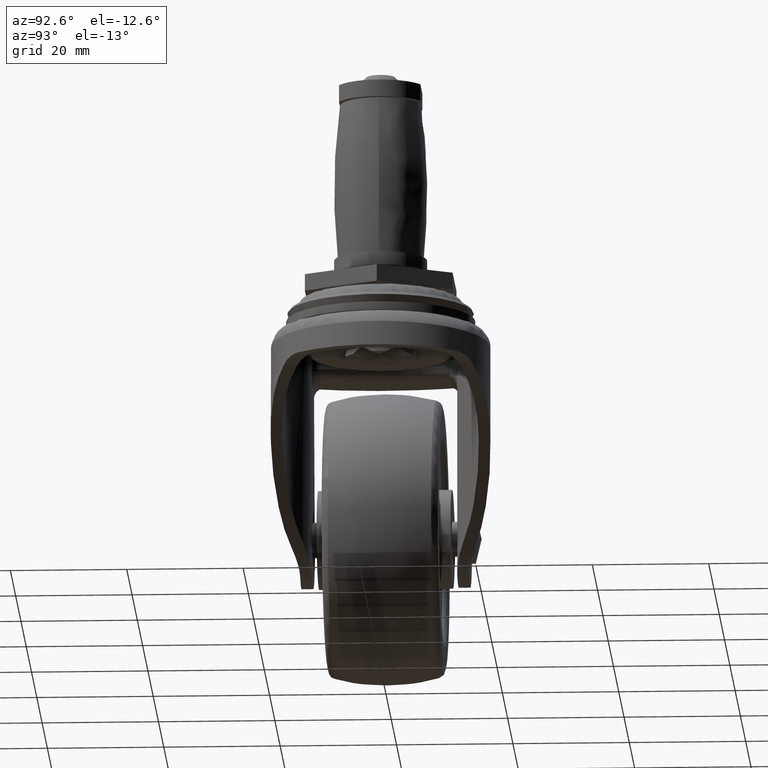
[diagram: clean part render]
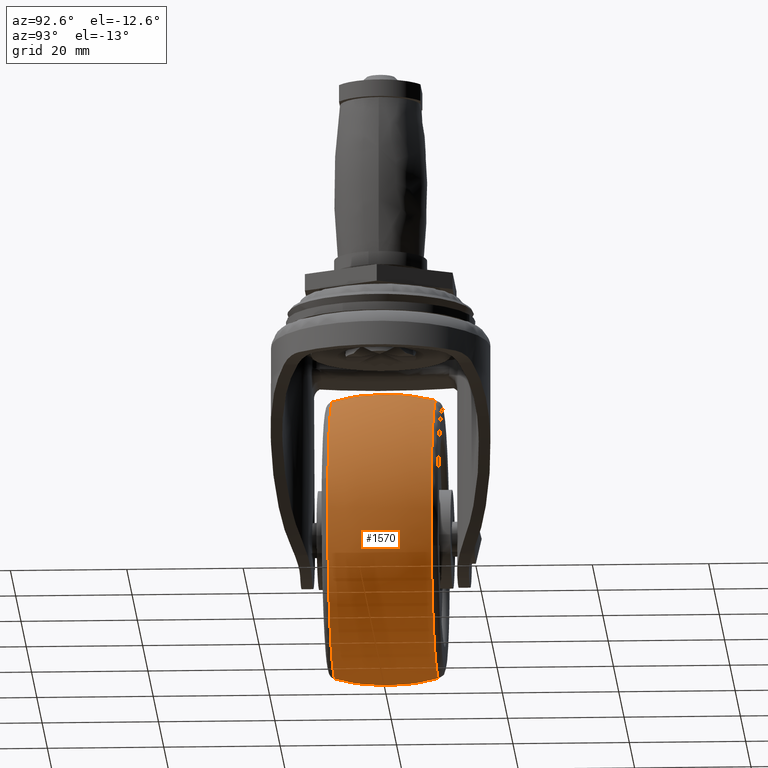
[diagram: same view with one face highlighted and labeled with its STEP entity id]
A machine part, auxiliary view. The second image highlights one B-rep face of the part: STEP entity #1570.
In plain terms, the highlighted face is a freeform B-spline surface patch.
Its self-contained STEP definition (entity closure, byte-faithful):
#848=CARTESIAN_POINT('',(-10.439454704231171,-8.880695348597591,-63.266084000819433));
#849=VERTEX_POINT('',#848);
#863=CARTESIAN_POINT('',(4.105181005570539,-8.880683016474443,-35.068018819371893));
#864=VERTEX_POINT('',#863);
#865=CARTESIAN_POINT('',(-10.439454704231172,-8.880695348597591,-63.266084000819440));
#866=CARTESIAN_POINT('',(4.854616084614149,-8.880692826218334,-57.385926726864390));
#867=CARTESIAN_POINT('',(4.854616602799102,-8.880685626245796,-41.000417968174808));
#868=CARTESIAN_POINT('',(4.854616698100981,-8.880684302064344,-37.986880534437795));
#869=CARTESIAN_POINT('',(4.105181005570539,-8.880683016474443,-35.068018819371879));
#877=(BOUNDED_CURVE()B_SPLINE_CURVE(2,(#865,#866,#867,#868,#869),.UNSPECIFIED.,.F.,.U.)B_SPLINE_CURVE_WITH_KNOTS((3,2,3),(0.060939058467430,0.250000000000000,0.292443215233338),.UNSPECIFIED.)CURVE()GEOMETRIC_REPRESENTATION_ITEM()RATIONAL_B_SPLINE_CURVE((0.892016636363401,0.778501329130495,1.0,0.950274680294062,0.917433380162729))REPRESENTATION_ITEM(''));
#878=EDGE_CURVE('',#849,#864,#877,.T.);
#977=CARTESIAN_POINT('',(-19.0,-8.880674679469260,-17.145799814691660));
#978=VERTEX_POINT('',#977);
#979=CARTESIAN_POINT('',(4.105181005570539,-8.880683016474443,-35.068018819371879));
#980=CARTESIAN_POINT('',(-0.496460138748490,-8.880674840585099,-17.145799661987645));
#981=CARTESIAN_POINT('',(-19.0,-8.880674679469260,-17.145799814691660));
#989=(BOUNDED_CURVE()B_SPLINE_CURVE(2,(#979,#980,#981),.UNSPECIFIED.,.F.,.U.)B_SPLINE_CURVE_WITH_KNOTS((3,3),(0.292443215233338,0.500000000000000),.UNSPECIFIED.)CURVE()GEOMETRIC_REPRESENTATION_ITEM()RATIONAL_B_SPLINE_CURVE((0.917433380162729,0.756832100892486,1.0))REPRESENTATION_ITEM(''));
#990=EDGE_CURVE('',#864,#978,#989,.T.);
#992=CARTESIAN_POINT('',(-42.695071349737589,-8.880689998743961,-38.246087340715889));
#993=VERTEX_POINT('',#992);
#1007=CARTESIAN_POINT('',(-19.0,-8.880696014925480,-64.855036588697899));
#1008=VERTEX_POINT('',#1007);
#1009=CARTESIAN_POINT('',(-42.695071349737589,-8.880689998743961,-38.246087340715889));
#1010=CARTESIAN_POINT('',(-42.854617115841521,-8.880690153907644,-39.618633208410309));
#1011=CARTESIAN_POINT('',(-42.854617070440391,-8.880690328152435,-41.000420827761182));
#1012=CARTESIAN_POINT('',(-42.854616286653851,-8.880693336243196,-64.855036507566936));
#1013=CARTESIAN_POINT('',(-19.0,-8.880696014925480,-64.855036588697899));
#1021=(BOUNDED_CURVE()B_SPLINE_CURVE(2,(#1009,#1010,#1011,#1012,#1013),.UNSPECIFIED.,.F.,.U.)B_SPLINE_CURVE_WITH_KNOTS((3,2,3),(0.730000152255469,0.750000000000000,1.0),.UNSPECIFIED.)CURVE()GEOMETRIC_REPRESENTATION_ITEM()RATIONAL_B_SPLINE_CURVE((0.956886417866550,0.976568720873301,1.0,0.707106781186547,1.0))REPRESENTATION_ITEM(''));
#1022=EDGE_CURVE('',#993,#1008,#1021,.T.);
#1024=CARTESIAN_POINT('',(-19.0,-8.880696014925480,-64.855036588697899));
#1025=CARTESIAN_POINT('',(-14.572261878416146,-8.880696014925480,-64.855036588697899));
#1026=CARTESIAN_POINT('',(-10.439454704231172,-8.880695348597591,-63.266084000819433));
#1034=(BOUNDED_CURVE()B_SPLINE_CURVE(2,(#1024,#1025,#1026),.UNSPECIFIED.,.F.,.U.)B_SPLINE_CURVE_WITH_KNOTS((3,3),(0.0,0.060939058467430),.UNSPECIFIED.)CURVE()GEOMETRIC_REPRESENTATION_ITEM()RATIONAL_B_SPLINE_CURVE((1.0,0.928605452056053,0.892016636363401))REPRESENTATION_ITEM(''));
#1035=EDGE_CURVE('',#1008,#849,#1034,.T.);
#1064=CARTESIAN_POINT('',(4.028808320816079,8.880493062320664,-47.222694978326757));
#1065=VERTEX_POINT('',#1064);
#1066=CARTESIAN_POINT('',(-19.0,8.880484047332796,-17.145801747389740));
#1067=VERTEX_POINT('',#1066);
#1068=CARTESIAN_POINT('',(4.028808320816079,8.880493062320664,-47.222694978326757));
#1069=CARTESIAN_POINT('',(4.854615588697799,8.880491958004653,-44.166356777445131));
#1070=CARTESIAN_POINT('',(4.854615588697799,8.880491031129038,-41.000419168043820));
#1071=CARTESIAN_POINT('',(4.854615588697800,8.880484047332796,-17.145801747389740));
#1072=CARTESIAN_POINT('',(-19.0,8.880484047332796,-17.145801747389740));
#1080=(BOUNDED_CURVE()B_SPLINE_CURVE(2,(#1068,#1069,#1070,#1071,#1072),.UNSPECIFIED.,.F.,.U.)B_SPLINE_CURVE_WITH_KNOTS((3,2,3),(0.205522198813460,0.250000000000000,0.500000000000000),.UNSPECIFIED.)CURVE()GEOMETRIC_REPRESENTATION_ITEM()RATIONAL_B_SPLINE_CURVE((0.914323573906565,0.947891014578918,1.0,0.707106781186547,1.0))REPRESENTATION_ITEM(''));
#1081=EDGE_CURVE('',#1065,#1067,#1080,.T.);
#1184=CARTESIAN_POINT('',(-19.0,8.880498014925280,-64.855036588697899));
#1185=VERTEX_POINT('',#1184);
#1186=CARTESIAN_POINT('',(-19.0,8.880498014925280,-64.855036588697899));
#1187=CARTESIAN_POINT('',(-0.735367634523530,8.880498014925280,-64.855036588697885));
#1188=CARTESIAN_POINT('',(4.028808320816079,8.880493062320664,-47.222694978326757));
#1196=(BOUNDED_CURVE()B_SPLINE_CURVE(2,(#1186,#1187,#1188),.UNSPECIFIED.,.F.,.U.)B_SPLINE_CURVE_WITH_KNOTS((3,3),(0.0,0.205522198813460),.UNSPECIFIED.)CURVE()GEOMETRIC_REPRESENTATION_ITEM()RATIONAL_B_SPLINE_CURVE((1.0,0.759215766607630,0.914323573906565))REPRESENTATION_ITEM(''));
#1197=EDGE_CURVE('',#1185,#1065,#1196,.T.);
#1199=CARTESIAN_POINT('',(-42.695069393824880,8.880499549264304,-38.246087667988547));
#1200=VERTEX_POINT('',#1199);
#1201=CARTESIAN_POINT('',(-42.695069393824873,8.880499549264304,-38.246087667988547));
#1202=CARTESIAN_POINT('',(-42.854615199209967,8.880499509692079,-39.618633480991342));
#1203=CARTESIAN_POINT('',(-42.854615210789220,8.880499465253497,-41.000421043928490));
#1204=CARTESIAN_POINT('',(-42.854615410688758,8.880498698083986,-64.855036609389799));
#1205=CARTESIAN_POINT('',(-19.0,8.880498014925280,-64.855036588697899));
#1213=(BOUNDED_CURVE()B_SPLINE_CURVE(2,(#1201,#1202,#1203,#1204,#1205),.UNSPECIFIED.,.F.,.U.)B_SPLINE_CURVE_WITH_KNOTS((3,2,3),(0.730000152959242,0.750000000000000,1.0),.UNSPECIFIED.)CURVE()GEOMETRIC_REPRESENTATION_ITEM()RATIONAL_B_SPLINE_CURVE((0.956886419251749,0.976568721697823,1.0,0.707106781186547,1.0))REPRESENTATION_ITEM(''));
#1214=EDGE_CURVE('',#1200,#1185,#1213,.T.);
#1478=CARTESIAN_POINT('',(-42.449539180902050,-9.774574389234171,-38.274607386644682));
#1479=CARTESIAN_POINT('',(-43.832791040827090,-4.986535860791466,-38.113815879340628));
#1480=CARTESIAN_POINT('',(-43.832791040827097,-0.000099000000085,-38.113815879340628));
#1481=CARTESIAN_POINT('',(-43.832791040827097,4.986339228121400,-38.113815879340613));
#1482=CARTESIAN_POINT('',(-42.449538437390878,9.774378962850394,-38.274607473071669));
#1483=CARTESIAN_POINT('',(-42.607434160692144,-9.774574389234171,-39.632941095491930));
#1484=CARTESIAN_POINT('',(-43.999999999999993,-4.986535860791465,-39.552275581908553));
#1485=CARTESIAN_POINT('',(-44.0,-0.000099000000085,-39.552275581908560));
#1486=CARTESIAN_POINT('',(-44.0,4.986339228121399,-39.552275581908567));
#1487=CARTESIAN_POINT('',(-42.607433412174601,9.774378962850394,-39.632941138850420));
#1488=CARTESIAN_POINT('',(-42.607434160692151,-9.774574389234173,-41.000421000000109));
#1489=CARTESIAN_POINT('',(-44.000000000000014,-4.986535860791467,-41.000421000000102));
#1490=CARTESIAN_POINT('',(-44.0,-0.000099000000085,-41.000421000000102));
#1491=CARTESIAN_POINT('',(-44.000000000000007,4.986339228121401,-41.000421000000109));
#1492=CARTESIAN_POINT('',(-42.607433412174615,9.774378962850395,-41.000421000000102));
#1493=CARTESIAN_POINT('',(-42.607434160692144,-9.774574389234171,-64.607855160692253));
#1494=CARTESIAN_POINT('',(-44.000000000000014,-4.986535860791466,-66.000421000000117));
#1495=CARTESIAN_POINT('',(-44.000000000000014,-0.000099000000085,-66.000421000000102));
#1496=CARTESIAN_POINT('',(-44.0,4.986339228121400,-66.000421000000102));
#1497=CARTESIAN_POINT('',(-42.607433412174629,9.774378962850397,-64.607854412174731));
#1498=CARTESIAN_POINT('',(-18.999999999999996,-9.774574389234173,-64.607855160692239));
#1499=CARTESIAN_POINT('',(-19.000000000000004,-4.986535860791467,-66.000421000000088));
#1500=CARTESIAN_POINT('',(-19.0,-0.000099000000085,-66.000421000000102));
#1501=CARTESIAN_POINT('',(-18.999999999999996,4.986339228121401,-66.000421000000102));
#1502=CARTESIAN_POINT('',(-18.999999999999996,9.774378962850395,-64.607854412174703));
#1503=CARTESIAN_POINT('',(4.607434160692143,-9.774574389234171,-64.607855160692253));
#1504=CARTESIAN_POINT('',(6.000000000000002,-4.986535860791466,-66.000421000000117));
#1505=CARTESIAN_POINT('',(6.000000000000003,-0.000099000000085,-66.000421000000102));
#1506=CARTESIAN_POINT('',(6.000000000000002,4.986339228121400,-66.000421000000102));
#1507=CARTESIAN_POINT('',(4.607433412174609,9.774378962850397,-64.607854412174717));
#1508=CARTESIAN_POINT('',(4.607434160692143,-9.774574389234173,-41.000421000000109));
#1509=CARTESIAN_POINT('',(6.000000000000001,-4.986535860791467,-41.000421000000102));
#1510=CARTESIAN_POINT('',(6.000000000000002,-0.000099000000085,-41.000421000000102));
#1511=CARTESIAN_POINT('',(6.000000000000001,4.986339228121401,-41.000421000000109));
#1512=CARTESIAN_POINT('',(4.607433412174609,9.774378962850395,-41.000421000000102));
#1513=CARTESIAN_POINT('',(4.607434160692143,-9.774574389234171,-17.392986839307952));
#1514=CARTESIAN_POINT('',(6.000000000000002,-4.986535860791466,-16.000421000000099));
#1515=CARTESIAN_POINT('',(6.000000000000003,-0.000099000000085,-16.000421000000099));
#1516=CARTESIAN_POINT('',(6.000000000000002,4.986339228121400,-16.000421000000109));
#1517=CARTESIAN_POINT('',(4.607433412174609,9.774378962850397,-17.392987587825498));
#1518=CARTESIAN_POINT('',(-18.999999999999996,-9.774574389234173,-17.392986839307959));
#1519=CARTESIAN_POINT('',(-19.000000000000004,-4.986535860791467,-16.000421000000095));
#1520=CARTESIAN_POINT('',(-19.0,-0.000099000000085,-16.000421000000099));
#1521=CARTESIAN_POINT('',(-18.999999999999996,4.986339228121401,-16.000421000000099));
#1522=CARTESIAN_POINT('',(-18.999999999999996,9.774378962850395,-17.392987587825488));
#1530=(BOUNDED_SURFACE()B_SPLINE_SURFACE(2,2,((#1478,#1483,#1488,#1493,#1498,#1503,#1508,#1513,#1518),(#1479,#1484,#1489,#1494,#1499,#1504,#1509,#1514,#1519),(#1480,#1485,#1490,#1495,#1500,#1505,#1510,#1515,#1520),(#1481,#1486,#1491,#1496,#1501,#1506,#1511,#1516,#1521),(#1482,#1487,#1492,#1497,#1502,#1507,#1512,#1517,#1522)),.UNSPECIFIED.,.F.,.F.,.U.)B_SPLINE_SURFACE_WITH_KNOTS((3,2,3),(3,2,2,2,3),(0.0,10.236360747090449,20.472724174438351),(0.0,3.313707807691297,44.735064045000797,86.156420282310307,127.577776519619800),.UNSPECIFIED.)GEOMETRIC_REPRESENTATION_ITEM()RATIONAL_B_SPLINE_SURFACE(((0.890190349488654,0.908500888985242,0.930299149424518,0.657820837090154,0.930299149424518,0.657820837090154,0.930299149424518,0.657820837090154,0.930299149424518),(0.913709496305893,0.932503806792552,0.954877985054265,0.675200698437618,0.954877985054265,0.675200698437618,0.954877985054265,0.675200698437618,0.954877985054265),(0.956886126402807,0.976568547383107,1.0,0.707106781186548,1.0,0.707106781186548,1.0,0.707106781186548,1.0),(0.913709485000657,0.932503795254774,0.954877973239654,0.675200690083426,0.954877973239654,0.675200690083426,0.954877973239654,0.675200690083426,0.954877973239654),(0.890190337172292,0.908500876415542,0.930299136553225,0.657820827988775,0.930299136553225,0.657820827988775,0.930299136553225,0.657820827988775,0.930299136553225)))REPRESENTATION_ITEM('')SURFACE());
#1531=ORIENTED_EDGE('',*,*,#1022,.F.);
#1532=CARTESIAN_POINT('',(-42.695071349737589,-8.880689998743961,-38.246087340715889));
#1533=CARTESIAN_POINT('',(-43.832793451602505,-4.514257930009319,-38.113836618835506));
#1534=CARTESIAN_POINT('',(-43.832793454515084,-0.000099000000043,-38.113836643890963));
#1535=CARTESIAN_POINT('',(-43.832793457427663,4.514063897921121,-38.113836668946433));
#1536=CARTESIAN_POINT('',(-42.695069393824888,8.880499549264304,-38.246087667988547));
#1544=(BOUNDED_CURVE()B_SPLINE_CURVE(2,(#1532,#1533,#1534,#1535,#1536),.UNSPECIFIED.,.F.,.U.)B_SPLINE_CURVE_WITH_KNOTS((3,2,3),(0.396517791678113,0.500000000000000,0.603482295550449),.UNSPECIFIED.)CURVE()GEOMETRIC_REPRESENTATION_ITEM()RATIONAL_B_SPLINE_CURVE((0.894624856558871,0.917631094243127,0.956886118190660,0.917631061153774,0.894624817773452))REPRESENTATION_ITEM(''));
#1545=EDGE_CURVE('',#993,#1200,#1544,.T.);
#1546=ORIENTED_EDGE('',*,*,#1545,.T.);
#1547=ORIENTED_EDGE('',*,*,#1214,.T.);
#1548=ORIENTED_EDGE('',*,*,#1197,.T.);
#1549=ORIENTED_EDGE('',*,*,#1081,.T.);
#1550=CARTESIAN_POINT('',(-19.000000000000004,-8.880674679469260,-17.145799814691664));
#1551=CARTESIAN_POINT('',(-18.999999999999993,-4.514249879502306,-16.000421000000095));
#1552=CARTESIAN_POINT('',(-19.0,-0.000099000000085,-16.000421000000099));
#1553=CARTESIAN_POINT('',(-19.0,4.514055751423954,-16.000421000000099));
#1554=CARTESIAN_POINT('',(-18.999999999999996,8.880484047332796,-17.145801747389747));
#1562=(BOUNDED_CURVE()B_SPLINE_CURVE(2,(#1550,#1551,#1552,#1553,#1554),.UNSPECIFIED.,.F.,.U.)B_SPLINE_CURVE_WITH_KNOTS((3,2,3),(0.396517968656450,0.500000000000000,0.603482116461928),.UNSPECIFIED.)CURVE()GEOMETRIC_REPRESENTATION_ITEM()RATIONAL_B_SPLINE_CURVE((0.934933549817224,0.958976354587886,1.0,0.958976320844190,0.934933510264773))REPRESENTATION_ITEM(''));
#1563=EDGE_CURVE('',#978,#1067,#1562,.T.);
#1564=ORIENTED_EDGE('',*,*,#1563,.F.);
#1565=ORIENTED_EDGE('',*,*,#990,.F.);
#1566=ORIENTED_EDGE('',*,*,#878,.F.);
#1567=ORIENTED_EDGE('',*,*,#1035,.F.);
#1568=EDGE_LOOP('',(#1531,#1546,#1547,#1548,#1549,#1564,#1565,#1566,#1567));
#1569=FACE_OUTER_BOUND('',#1568,.T.);
#1570=ADVANCED_FACE('',(#1569),#1530,.T.);